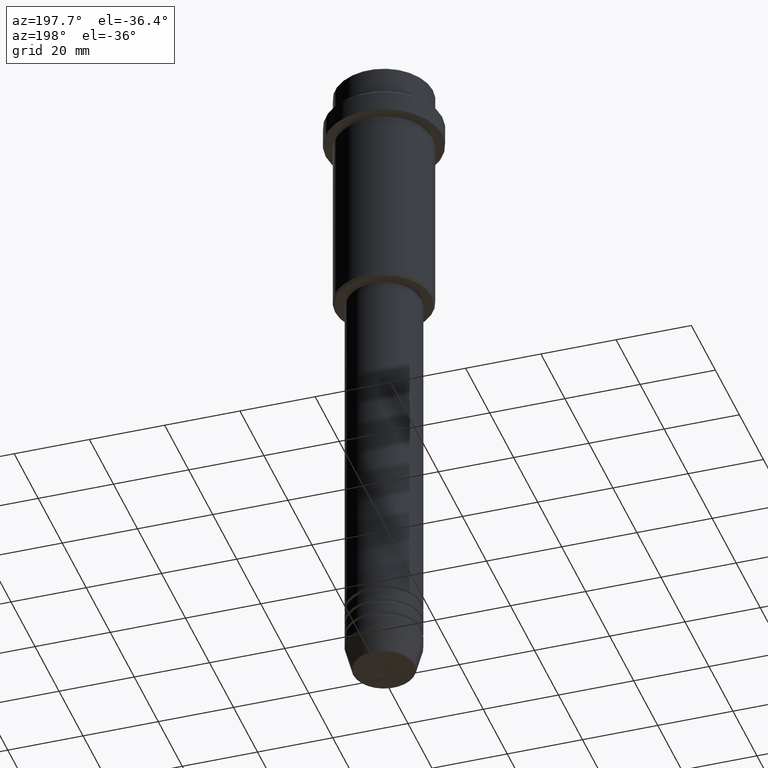
[diagram: clean part render]
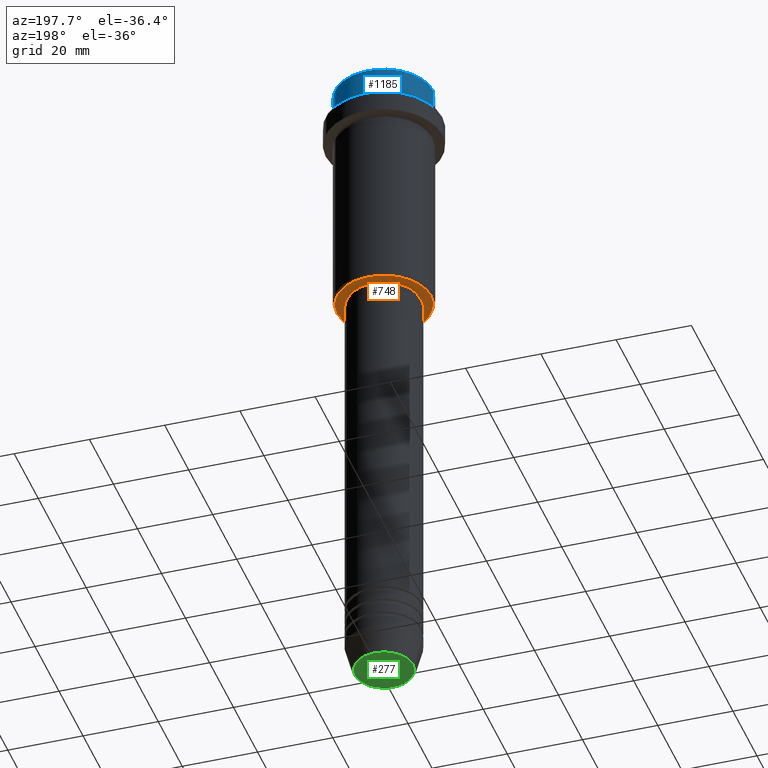
[diagram: same view with three faces highlighted in distinct colors, each labeled with its STEP entity id]
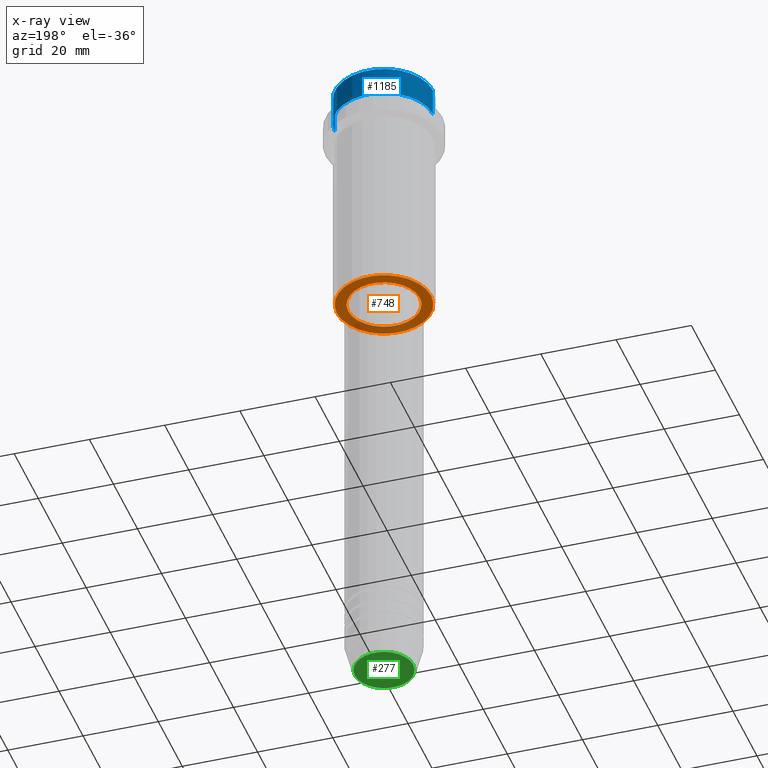
[diagram: x-ray of the same camera — body ghosted, the three highlighted faces saturated]
A machine part, auxiliary view with three faces highlighted in distinct colors.
The next image is the same camera in x-ray (body ghosted, the three faces saturated) — at least one of them is partly hidden behind the body in this view.
Their STEP definitions:

[orange] entity #748 — the highlighted planar face has unit normal (0, 0, -1).
#5 = CARTESIAN_POINT ( 'NONE',  ( 0.000000000000000000, 0.000000000000000000, -65.00000000000000000 ) ) ;
#13 = CARTESIAN_POINT ( 'NONE',  ( 9.499999999999996447, 0.000000000000000000, -65.00000000000000000 ) ) ;
#34 = CARTESIAN_POINT ( 'NONE',  ( 0.000000000000000000, 0.000000000000000000, -65.00000000000000000 ) ) ;
#40 = DIRECTION ( 'NONE',  ( -0.000000000000000000, -0.000000000000000000, 1.000000000000000000 ) ) ;
#62 = CARTESIAN_POINT ( 'NONE',  ( 0.000000000000000000, 13.00000000000000000, -65.00000000000000000 ) ) ;
#103 = EDGE_LOOP ( 'NONE', ( #245, #1032 ) ) ;
#166 = VERTEX_POINT ( 'NONE', #13 ) ;
#178 = CIRCLE ( 'NONE', #409, 12.50000000000002487 ) ;
#217 = VERTEX_POINT ( 'NONE', #969 ) ;
#245 = ORIENTED_EDGE ( 'NONE', *, *, #446, .T. ) ;
#247 = CIRCLE ( 'NONE', #707, 9.499999999999996447 ) ;
#287 = DIRECTION ( 'NONE',  ( -0.000000000000000000, -0.000000000000000000, 1.000000000000000000 ) ) ;
#330 = CARTESIAN_POINT ( 'NONE',  ( -9.499999999999996447, 1.163414459189985091E-15, -65.00000000000000000 ) ) ;
#368 = ORIENTED_EDGE ( 'NONE', *, *, #878, .T. ) ;
#381 = DIRECTION ( 'NONE',  ( -1.000000000000000000, 0.000000000000000000, 0.000000000000000000 ) ) ;
#409 = AXIS2_PLACEMENT_3D ( 'NONE', #5, #874, #1411 ) ;
#446 = EDGE_CURVE ( 'NONE', #217, #472, #178, .T. ) ;
#472 = VERTEX_POINT ( 'NONE', #845 ) ;
#483 = DIRECTION ( 'NONE',  ( 1.000000000000000000, 0.000000000000000000, 0.000000000000000000 ) ) ;
#514 = VERTEX_POINT ( 'NONE', #330 ) ;
#534 = CIRCLE ( 'NONE', #1050, 9.499999999999996447 ) ;
#582 = FACE_OUTER_BOUND ( 'NONE', #103, .T. ) ;
#611 = ORIENTED_EDGE ( 'NONE', *, *, #1334, .T. ) ;
#702 = DIRECTION ( 'NONE',  ( 0.000000000000000000, 0.000000000000000000, -1.000000000000000000 ) ) ;
#707 = AXIS2_PLACEMENT_3D ( 'NONE', #1232, #287, #1354 ) ;
#717 = FACE_BOUND ( 'NONE', #1284, .T. ) ;
#721 = DIRECTION ( 'NONE',  ( -1.000000000000000000, 0.000000000000000000, -0.000000000000000000 ) ) ;
#748 = ADVANCED_FACE ( 'NONE', ( #582, #717 ), #1031, .T. ) ;
#753 = AXIS2_PLACEMENT_3D ( 'NONE', #62, #702, #721 ) ;
#805 = DIRECTION ( 'NONE',  ( 0.000000000000000000, 0.000000000000000000, -1.000000000000000000 ) ) ;
#811 = AXIS2_PLACEMENT_3D ( 'NONE', #34, #805, #381 ) ;
#821 = CARTESIAN_POINT ( 'NONE',  ( 0.000000000000000000, 0.000000000000000000, -65.00000000000000000 ) ) ;
#845 = CARTESIAN_POINT ( 'NONE',  ( -12.50000000000002487, 1.561424668912876886E-15, -65.00000000000000000 ) ) ;
#874 = DIRECTION ( 'NONE',  ( 0.000000000000000000, 0.000000000000000000, -1.000000000000000000 ) ) ;
#878 = EDGE_CURVE ( 'NONE', #166, #514, #247, .T. ) ;
#969 = CARTESIAN_POINT ( 'NONE',  ( 12.50000000000002487, 0.000000000000000000, -65.00000000000000000 ) ) ;
#991 = EDGE_CURVE ( 'NONE', #472, #217, #1392, .T. ) ;
#1031 = PLANE ( 'NONE',  #753 ) ;
#1032 = ORIENTED_EDGE ( 'NONE', *, *, #991, .T. ) ;
#1050 = AXIS2_PLACEMENT_3D ( 'NONE', #821, #40, #483 ) ;
#1232 = CARTESIAN_POINT ( 'NONE',  ( 0.000000000000000000, 0.000000000000000000, -65.00000000000000000 ) ) ;
#1284 = EDGE_LOOP ( 'NONE', ( #368, #611 ) ) ;
#1334 = EDGE_CURVE ( 'NONE', #514, #166, #534, .T. ) ;
#1354 = DIRECTION ( 'NONE',  ( 1.000000000000000000, 0.000000000000000000, 0.000000000000000000 ) ) ;
#1392 = CIRCLE ( 'NONE', #811, 12.50000000000002487 ) ;
#1411 = DIRECTION ( 'NONE',  ( -1.000000000000000000, 0.000000000000000000, 0.000000000000000000 ) ) ;

[blue] entity #1185 — the highlighted cylindrical surface (partial cylindrical patch) has radius 13 mm, axis along (-0, -0, 1).
#30 = ORIENTED_EDGE ( 'NONE', *, *, #37, .T. ) ;
#37 = EDGE_CURVE ( 'NONE', #1409, #232, #173, .T. ) ;
#120 = VERTEX_POINT ( 'NONE', #719 ) ;
#173 = LINE ( 'NONE', #750, #501 ) ;
#189 = CARTESIAN_POINT ( 'NONE',  ( 0.000000000000000000, 0.000000000000000000, 0.000000000000000000 ) ) ;
#232 = VERTEX_POINT ( 'NONE', #322 ) ;
#233 = DIRECTION ( 'NONE',  ( -0.000000000000000000, -0.000000000000000000, 1.000000000000000000 ) ) ;
#238 = DIRECTION ( 'NONE',  ( 1.000000000000000000, 0.000000000000000000, 0.000000000000000000 ) ) ;
#270 = AXIS2_PLACEMENT_3D ( 'NONE', #508, #377, #1137 ) ;
#286 = DIRECTION ( 'NONE',  ( 1.000000000000000000, 0.000000000000000000, 0.000000000000000000 ) ) ;
#322 = CARTESIAN_POINT ( 'NONE',  ( -12.99999999999999822, 1.592040838891558898E-15, -0.5000000000000038858 ) ) ;
#356 = CARTESIAN_POINT ( 'NONE',  ( 12.99999999999999822, 0.000000000000000000, 0.000000000000000000 ) ) ;
#377 = DIRECTION ( 'NONE',  ( -0.000000000000000000, -0.000000000000000000, 1.000000000000000000 ) ) ;
#389 = ORIENTED_EDGE ( 'NONE', *, *, #591, .F. ) ;
#501 = VECTOR ( 'NONE', #1384, 1000.000000000000000 ) ;
#508 = CARTESIAN_POINT ( 'NONE',  ( 0.000000000000000000, 0.000000000000000000, -7.999999999999998224 ) ) ;
#588 = CARTESIAN_POINT ( 'NONE',  ( -12.99999999999999822, 1.592040838891558898E-15, -7.999999999999998224 ) ) ;
#591 = EDGE_CURVE ( 'NONE', #944, #120, #671, .T. ) ;
#608 = EDGE_LOOP ( 'NONE', ( #888, #30, #1107, #389 ) ) ;
#618 = AXIS2_PLACEMENT_3D ( 'NONE', #189, #233, #238 ) ;
#671 = LINE ( 'NONE', #356, #791 ) ;
#696 = CARTESIAN_POINT ( 'NONE',  ( 0.000000000000000000, 0.000000000000000000, -0.5000000000000038858 ) ) ;
#719 = CARTESIAN_POINT ( 'NONE',  ( 12.99999999999999822, 0.000000000000000000, -0.5000000000000038858 ) ) ;
#735 = FACE_OUTER_BOUND ( 'NONE', #608, .T. ) ;
#750 = CARTESIAN_POINT ( 'NONE',  ( -12.99999999999999822, 1.592040838891558898E-15, 0.000000000000000000 ) ) ;
#791 = VECTOR ( 'NONE', #990, 1000.000000000000000 ) ;
#793 = EDGE_CURVE ( 'NONE', #944, #1409, #1342, .T. ) ;
#888 = ORIENTED_EDGE ( 'NONE', *, *, #793, .T. ) ;
#944 = VERTEX_POINT ( 'NONE', #1213 ) ;
#959 = CIRCLE ( 'NONE', #1115, 12.99999999999999822 ) ;
#990 = DIRECTION ( 'NONE',  ( -0.000000000000000000, -0.000000000000000000, 1.000000000000000000 ) ) ;
#1107 = ORIENTED_EDGE ( 'NONE', *, *, #1403, .T. ) ;
#1115 = AXIS2_PLACEMENT_3D ( 'NONE', #696, #1225, #286 ) ;
#1137 = DIRECTION ( 'NONE',  ( 1.000000000000000000, 0.000000000000000000, 0.000000000000000000 ) ) ;
#1159 = CYLINDRICAL_SURFACE ( 'NONE', #618, 12.99999999999999822 ) ;
#1185 = ADVANCED_FACE ( 'NONE', ( #735 ), #1159, .T. ) ;
#1213 = CARTESIAN_POINT ( 'NONE',  ( 12.99999999999999822, 0.000000000000000000, -7.999999999999998224 ) ) ;
#1225 = DIRECTION ( 'NONE',  ( 0.000000000000000000, 0.000000000000000000, -1.000000000000000000 ) ) ;
#1342 = CIRCLE ( 'NONE', #270, 12.99999999999999822 ) ;
#1384 = DIRECTION ( 'NONE',  ( -0.000000000000000000, -0.000000000000000000, 1.000000000000000000 ) ) ;
#1403 = EDGE_CURVE ( 'NONE', #232, #120, #959, .T. ) ;
#1409 = VERTEX_POINT ( 'NONE', #588 ) ;

[green] entity #277 — the highlighted planar face has unit normal (0, -0, 1).
#174 = EDGE_CURVE ( 'NONE', #576, #1145, #1149, .T. ) ;
#277 = ADVANCED_FACE ( 'NONE', ( #669 ), #986, .F. ) ;
#422 = CARTESIAN_POINT ( 'NONE',  ( 7.740692158992658278, 0.000000000000000000, -180.0000000000000000 ) ) ;
#432 = ORIENTED_EDGE ( 'NONE', *, *, #677, .T. ) ;
#526 = CIRCLE ( 'NONE', #1318, 7.740692158992658278 ) ;
#568 = CARTESIAN_POINT ( 'NONE',  ( 0.000000000000000000, 0.000000000000000000, -180.0000000000000000 ) ) ;
#576 = VERTEX_POINT ( 'NONE', #422 ) ;
#655 = CARTESIAN_POINT ( 'NONE',  ( -7.740692158992658278, 9.775343368540041107E-16, -180.0000000000000000 ) ) ;
#657 = CARTESIAN_POINT ( 'NONE',  ( 0.000000000000000000, 0.000000000000000000, -180.0000000000000000 ) ) ;
#669 = FACE_OUTER_BOUND ( 'NONE', #1099, .T. ) ;
#677 = EDGE_CURVE ( 'NONE', #1145, #576, #526, .T. ) ;
#761 = DIRECTION ( 'NONE',  ( 1.000000000000000000, 0.000000000000000000, 0.000000000000000000 ) ) ;
#877 = DIRECTION ( 'NONE',  ( 0.000000000000000000, -0.000000000000000000, 1.000000000000000000 ) ) ;
#897 = DIRECTION ( 'NONE',  ( 1.000000000000000000, 0.000000000000000000, 0.000000000000000000 ) ) ;
#924 = AXIS2_PLACEMENT_3D ( 'NONE', #657, #1092, #761 ) ;
#986 = PLANE ( 'NONE',  #1238 ) ;
#1092 = DIRECTION ( 'NONE',  ( 0.000000000000000000, 0.000000000000000000, -1.000000000000000000 ) ) ;
#1099 = EDGE_LOOP ( 'NONE', ( #1168, #432 ) ) ;
#1145 = VERTEX_POINT ( 'NONE', #655 ) ;
#1149 = CIRCLE ( 'NONE', #924, 7.740692158992658278 ) ;
#1168 = ORIENTED_EDGE ( 'NONE', *, *, #174, .T. ) ;
#1207 = CARTESIAN_POINT ( 'NONE',  ( 0.000000000000000000, 0.000000000000000000, -180.0000000000000000 ) ) ;
#1227 = DIRECTION ( 'NONE',  ( 1.000000000000000000, 0.000000000000000000, 0.000000000000000000 ) ) ;
#1238 = AXIS2_PLACEMENT_3D ( 'NONE', #568, #877, #1227 ) ;
#1318 = AXIS2_PLACEMENT_3D ( 'NONE', #1207, #1337, #897 ) ;
#1337 = DIRECTION ( 'NONE',  ( 0.000000000000000000, 0.000000000000000000, -1.000000000000000000 ) ) ;